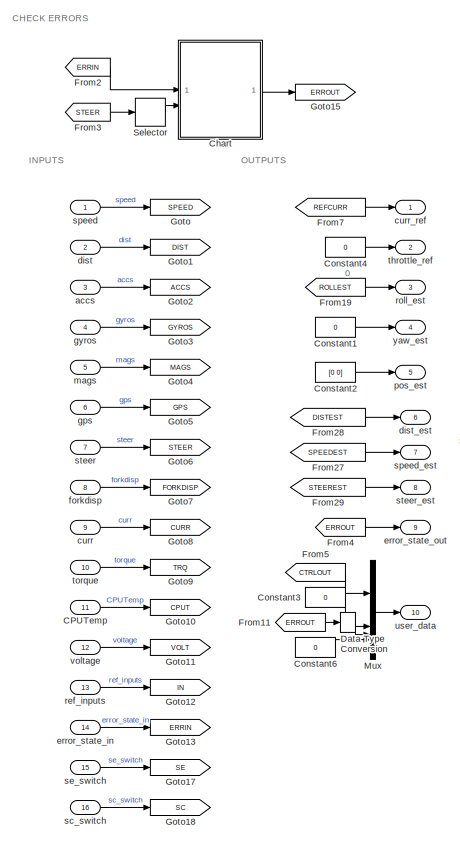
[diagram: root canvas - part 1/2, middle left region]
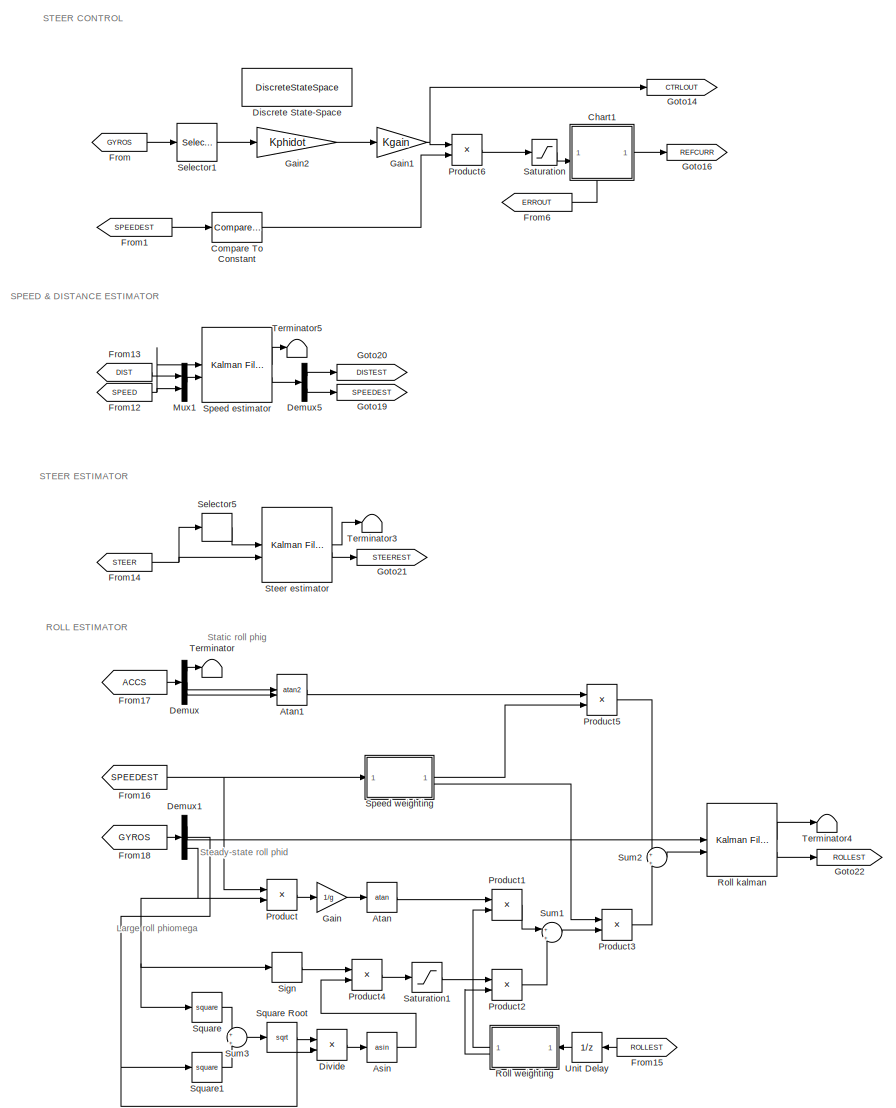
[diagram: root canvas - part 2/2, center side, full height]
MODEL slx_d1ef3c04e36b
KIND model
CONFIG AbsTol = auto
CONFIG EnableMultiTasking = off
CONFIG FixedStep = 1e-3
CONFIG MaxStep = auto
CONFIG MinStep = auto
CONFIG RelTol = 1e-3
CONFIG SampleTimeConstraint = Unconstrained
CONFIG SolverName = FixedStepAuto
CONFIG StartTime = 0.0
CONFIG StopTime = inf
BLOCK [Trigonometry] Asin
  Operator = asin
BLOCK [Trigonometry] Atan
  Operator = atan
BLOCK [Trigonometry] Atan1
  Operator = atan2
BLOCK [Inport] CPUTemp
  OutDataTypeStr = single
  Port = 11
  PortDimensions = [1 1]
  SignalType = real
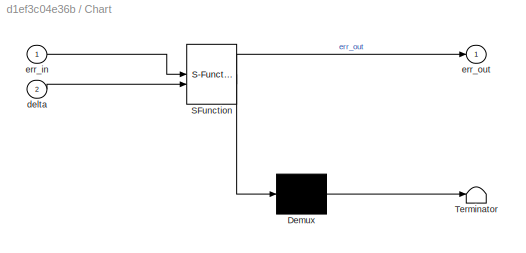
BLOCK [SubSystem] Chart
  ErrorFcn = Stateflow.Translate.translate
  PermitHierarchicalResolution = ExplicitOnly
  SFBlockType = Chart
  TreatAsAtomicUnit = on
BLOCK [Demux] Chart/ Demux 
  Outputs = 1
BLOCK [S-Function] Chart/ SFunction 
  EnableBusSupport = off
  FunctionName = sf_sfun
  Parameters = maxdelta
  PortCounts = [2 2]
  SFcnIsStateOwnerBlock = off
  SFunctionDeploymentMode = off
  Tag = Stateflow S-Function 3
BLOCK [Terminator] Chart/ Terminator 
BLOCK [Inport] Chart/delta
  Port = 2
BLOCK [Inport] Chart/err_in
BLOCK [Outport] Chart/err_out
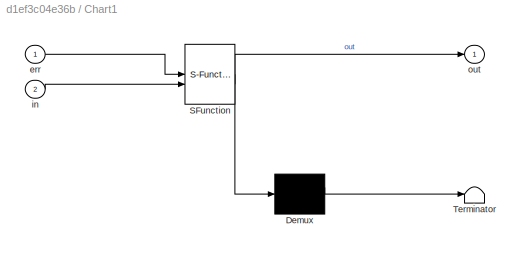
BLOCK [SubSystem] Chart1
  ErrorFcn = Stateflow.Translate.translate
  PermitHierarchicalResolution = ExplicitOnly
  PortSchema = {"entries":[{"content":{"sides":[{"content":{"connectorIds":["In2"]},"type":"ConnectorPlacement.EquallySpacedRectSide","uuid":"a7f247f2-f31a-4b26-82bd-1fe59a6d26c2"},{"content":{"connectorIds":["Out1"],"side":"RIGHT"},"type":"ConnectorPlacement.EquallySpacedRectSide","uuid":"fc5cfdaa-86ff-4983-b913-23b97ab75182"},{"content":{"connectorIds":[],"side":"TOP"},"type":"ConnectorPlacement.EquallySpacedR...<+389ch>
  SFBlockType = Chart
  TreatAsAtomicUnit = on
BLOCK [Demux] Chart1/ Demux 
  Outputs = 1
BLOCK [S-Function] Chart1/ SFunction 
  EnableBusSupport = off
  FunctionName = sf_sfun
  PortCounts = [2 2]
  SFcnIsStateOwnerBlock = off
  SFunctionDeploymentMode = off
  Tag = Stateflow S-Function 1
BLOCK [Terminator] Chart1/ Terminator 
BLOCK [Inport] Chart1/err
BLOCK [Inport] Chart1/in
  Port = 2
BLOCK [Outport] Chart1/out
BLOCK [Reference] Compare To Constant  REF=simulink/Logic and Bit
Operations/Compare
To Constant
  SourceBlock = simulink/Logic and Bit\nOperations/Compare\nTo Constant
  SourceType = Compare To Constant
BLOCK [Constant] Constant1
  OutDataTypeStr = Inherit: Inherit via back propagation
  SampleTime = -1
  Value = 0
BLOCK [Constant] Constant2
  OutDataTypeStr = Inherit: Inherit via back propagation
  SampleTime = -1
  Value = [0 0]
BLOCK [Constant] Constant3
  OutDataTypeStr = Inherit: Inherit via back propagation
  SampleTime = -1
  Value = 0
BLOCK [Constant] Constant4
  OutDataTypeStr = Inherit: Inherit via back propagation
  SampleTime = -1
  Value = 0
BLOCK [Constant] Constant6
  OutDataTypeStr = Inherit: Inherit via back propagation
  SampleTime = -1
  Value = 0
BLOCK [DataTypeConversion] Data Type Conversion
  RndMeth = Floor
  SaturateOnIntegerOverflow = off
BLOCK [Demux] Demux
  Outputs = 3
BLOCK [Demux] Demux1
  Outputs = 3
BLOCK [Demux] Demux5
  Outputs = 2
BLOCK [DiscreteStateSpace] Discrete State-Space
  A = Ksys{kctrl}.A
  B = Ksys{kctrl}.B
  C = Ksys{kctrl}.C
  D = Ksys{kctrl}.D
  SampleTime = -1
BLOCK [Product] Divide
  Inputs = /*
BLOCK [From] From
  GotoTag = GYROS
BLOCK [From] From1
  GotoTag = SPEEDEST
BLOCK [From] From11
  GotoTag = ERROUT
BLOCK [From] From12
  GotoTag = SPEED
BLOCK [From] From13
  GotoTag = DIST
BLOCK [From] From14
  GotoTag = STEER
BLOCK [From] From15
  GotoTag = ROLLEST
  NameLocation = top
BLOCK [From] From16
  GotoTag = SPEEDEST
BLOCK [From] From17
  GotoTag = ACCS
BLOCK [From] From18
  GotoTag = GYROS
BLOCK [From] From19
  GotoTag = ROLLEST
BLOCK [From] From2
  GotoTag = ERRIN
BLOCK [From] From27
  GotoTag = SPEEDEST
BLOCK [From] From28
  GotoTag = DISTEST
BLOCK [From] From29
  GotoTag = STEEREST
BLOCK [From] From3
  GotoTag = STEER
BLOCK [From] From4
  GotoTag = ERROUT
BLOCK [From] From5
  GotoTag = CTRLOUT
BLOCK [From] From6
  GotoTag = ERROUT
BLOCK [From] From7
  GotoTag = REFCURR
BLOCK [Gain] Gain
  Gain = 1/g
BLOCK [Gain] Gain1
  Gain = Kgain
BLOCK [Gain] Gain2
  Gain = Kphidot
BLOCK [Goto] Goto
  GotoTag = SPEED
BLOCK [Goto] Goto1
  GotoTag = DIST
BLOCK [Goto] Goto10
  GotoTag = CPUT
BLOCK [Goto] Goto11
  GotoTag = VOLT
BLOCK [Goto] Goto12
  GotoTag = IN
BLOCK [Goto] Goto13
  GotoTag = ERRIN
BLOCK [Goto] Goto14
  GotoTag = CTRLOUT
BLOCK [Goto] Goto15
  GotoTag = ERROUT
BLOCK [Goto] Goto16
  GotoTag = REFCURR
BLOCK [Goto] Goto17
  GotoTag = SE
BLOCK [Goto] Goto18
  GotoTag = SC
BLOCK [Goto] Goto19
  GotoTag = SPEEDEST
BLOCK [Goto] Goto2
  GotoTag = ACCS
BLOCK [Goto] Goto20
  GotoTag = DISTEST
BLOCK [Goto] Goto21
  GotoTag = STEEREST
BLOCK [Goto] Goto22
  GotoTag = ROLLEST
BLOCK [Goto] Goto3
  GotoTag = GYROS
BLOCK [Goto] Goto4
  GotoTag = MAGS
BLOCK [Goto] Goto5
  GotoTag = GPS
BLOCK [Goto] Goto6
  GotoTag = STEER
BLOCK [Goto] Goto7
  GotoTag = FORKDISP
BLOCK [Goto] Goto8
  GotoTag = CURR
BLOCK [Goto] Goto9
  GotoTag = TRQ
BLOCK [Mux] Mux
  DisplayOption = bar
BLOCK [Mux] Mux1
  DisplayOption = bar
  Inputs = 2
BLOCK [Product] Product
BLOCK [Product] Product1
BLOCK [Product] Product2
BLOCK [Product] Product3
BLOCK [Product] Product4
BLOCK [Product] Product5
BLOCK [Product] Product6
BLOCK [Reference] Roll kalman  REF=ctrlSharedLib/Kalman Filter
  LibrarySourceBlock = cstblocks/State Estimation/Kalman Filter
  SourceBlock = ctrlSharedLib/Kalman Filter
  SourceType = ctrlKalmanFilter
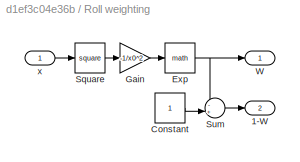
BLOCK [SubSystem] Roll weighting
  NameLocation = top
BLOCK [Outport] Roll weighting/1-W
  Port = 2
BLOCK [Constant] Roll weighting/Constant
  OutDataTypeStr = Inherit: Inherit via back propagation
BLOCK [Math] Roll weighting/Exp
BLOCK [Gain] Roll weighting/Gain
  Gain = -1/x0^2
BLOCK [Math] Roll weighting/Square
  Operator = square
BLOCK [Sum] Roll weighting/Sum
  Inputs = -+|
BLOCK [Outport] Roll weighting/W
BLOCK [Inport] Roll weighting/x
BLOCK [Saturate] Saturation
  LowerLimit = -iamax
  UpperLimit = iamax
BLOCK [Saturate] Saturation1
  LowerLimit = -phisat
  UpperLimit = phisat
BLOCK [Selector] Selector
  IndexMode = Zero-based
  IndexOptions = Index vector (dialog)
  Indices = 0
  InputPortWidth = 2
  OutputSizes = 1
BLOCK [Selector] Selector1
  IndexOptions = Index vector (dialog)
  Indices = 1
  InputPortWidth = 3
  OutputSizes = 1
BLOCK [Selector] Selector5
  IndexMode = Zero-based
  IndexOptions = Index vector (dialog)
  Indices = 1
  InputPortWidth = 2
  OutputSizes = 1
BLOCK [Signum] Sign
BLOCK [Reference] Speed estimator  REF=ctrlSharedLib/Kalman Filter
  LibrarySourceBlock = cstblocks/State Estimation/Kalman Filter
  SourceBlock = ctrlSharedLib/Kalman Filter
  SourceType = ctrlKalmanFilter
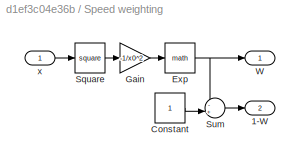
BLOCK [SubSystem] Speed weighting
BLOCK [Outport] Speed weighting/1-W
  Port = 2
BLOCK [Constant] Speed weighting/Constant
  OutDataTypeStr = Inherit: Inherit via back propagation
BLOCK [Math] Speed weighting/Exp
BLOCK [Gain] Speed weighting/Gain
  Gain = -1/x0^2
BLOCK [Math] Speed weighting/Square
  Operator = square
BLOCK [Sum] Speed weighting/Sum
  Inputs = -+|
BLOCK [Outport] Speed weighting/W
BLOCK [Inport] Speed weighting/x
BLOCK [Math] Square
  Operator = square
BLOCK [Sqrt] Square Root
BLOCK [Math] Square1
  Operator = square
BLOCK [Reference] Steer estimator  REF=ctrlSharedLib/Kalman Filter
  LibrarySourceBlock = cstblocks/State Estimation/Kalman Filter
  SourceBlock = ctrlSharedLib/Kalman Filter
  SourceType = ctrlKalmanFilter
BLOCK [Sum] Sum1
  Inputs = +|+
BLOCK [Sum] Sum2
  Inputs = +|+
BLOCK [Sum] Sum3
  Inputs = +|+
BLOCK [Terminator] Terminator
BLOCK [Terminator] Terminator3
BLOCK [Terminator] Terminator4
BLOCK [Terminator] Terminator5
BLOCK [UnitDelay] Unit Delay
  HasFrameUpgradeWarning = on
  NameLocation = top
  SampleTime = -1
BLOCK [Inport] accs
  OutDataTypeStr = single
  Port = 3
  PortDimensions = [3 1]
  SignalType = real
BLOCK [Inport] curr
  OutDataTypeStr = single
  Port = 9
  PortDimensions = [1 1]
  SignalType = real
BLOCK [Outport] curr_ref
  OutDataTypeStr = single
  PortDimensions = [1 1]
  SignalName = curr_ref
  SignalType = real
BLOCK [Inport] dist
  OutDataTypeStr = single
  Port = 2
  PortDimensions = [1 1]
  SignalType = real
BLOCK [Outport] dist_est
  OutDataTypeStr = single
  Port = 6
  PortDimensions = [1 1]
  SignalName = dist_est
  SignalType = real
BLOCK [Inport] error_state_in
  OutDataTypeStr = uint8
  Port = 14
  PortDimensions = [1 1]
  SignalType = real
BLOCK [Outport] error_state_out
  OutDataTypeStr = uint8
  Port = 9
  PortDimensions = [1 1]
  SignalName = error_state_out
  SignalType = real
BLOCK [Inport] forkdisp
  OutDataTypeStr = single
  Port = 8
  PortDimensions = [1 1]
  SignalType = real
BLOCK [Inport] gps
  OutDataTypeStr = single
  Port = 6
  PortDimensions = [3 1]
  SignalType = real
BLOCK [Inport] gyros
  OutDataTypeStr = single
  Port = 4
  PortDimensions = [3 1]
  SignalType = real
BLOCK [Inport] mags
  OutDataTypeStr = single
  Port = 5
  PortDimensions = [3 1]
  SignalType = real
BLOCK [Outport] pos_est
  OutDataTypeStr = single
  Port = 5
  PortDimensions = [2 1]
  SignalName = pos_est
  SignalType = real
BLOCK [Inport] ref_inputs
  OutDataTypeStr = single
  Port = 13
  PortDimensions = [2 1]
  SignalType = real
BLOCK [Outport] roll_est
  OutDataTypeStr = single
  Port = 3
  PortDimensions = [1 1]
  SignalName = roll_est
  SignalType = real
BLOCK [Inport] sc_switch
  OutDataTypeStr = single
  Port = 16
  PortDimensions = [1 1]
  SignalType = real
BLOCK [Inport] se_switch
  OutDataTypeStr = single
  Port = 15
  PortDimensions = [1 1]
  SignalType = real
BLOCK [Inport] speed
  OutDataTypeStr = single
  PortDimensions = [1 1]
  SignalType = real
BLOCK [Outport] speed_est
  OutDataTypeStr = single
  Port = 7
  PortDimensions = [1 1]
  SignalName = speed_est
  SignalType = real
BLOCK [Inport] steer
  OutDataTypeStr = single
  Port = 7
  PortDimensions = [2 1]
  SignalType = real
BLOCK [Outport] steer_est
  OutDataTypeStr = single
  Port = 8
  PortDimensions = [2 1]
  SignalName = steer_est
  SignalType = real
BLOCK [Outport] throttle_ref
  OutDataTypeStr = single
  Port = 2
  PortDimensions = [1 1]
  SignalName = throttle_ref
  SignalType = real
BLOCK [Inport] torque
  OutDataTypeStr = single
  Port = 10
  PortDimensions = [1 1]
  SignalType = real
BLOCK [Outport] user_data
  OutDataTypeStr = single
  Port = 10
  PortDimensions = [4 1]
  SignalName = user_data
  SignalType = real
BLOCK [Inport] voltage
  OutDataTypeStr = single
  Port = 12
  PortDimensions = [1 1]
  SignalType = real
BLOCK [Outport] yaw_est
  OutDataTypeStr = single
  Port = 4
  PortDimensions = [1 1]
  SignalName = yaw_est
  SignalType = real
ANNOTATION (root): 0
ANNOTATION (root): CHECK ERRORS
ANNOTATION (root): INPUTS
ANNOTATION (root): Large roll phiomega
ANNOTATION (root): OUTPUTS
ANNOTATION (root): ROLL ESTIMATOR
ANNOTATION (root): SPEED & DISTANCE ESTIMATOR
ANNOTATION (root): STEER CONTROL
ANNOTATION (root): STEER ESTIMATOR
ANNOTATION (root): Static roll phig
ANNOTATION (root): Steady-state roll phid
LINE Asin:1 -> Product4:2
LINE Atan1:1 -> Product5:1
LINE Atan:1 -> Product1:1
LINE CPUTemp:1 -> Goto10:1
LINE Chart1:1 -> Goto16:1
LINE Chart:1 -> Goto15:1
LINE Compare To Constant:1 -> Product6:2
LINE Constant1:1 -> yaw_est:1
LINE Constant2:1 -> pos_est:1
LINE Constant3:1 -> Mux:2
LINE Constant4:1 -> throttle_ref:1
LINE Constant6:1 -> Mux:4
LINE Data Type Conversion:1 -> Mux:3
LINE Demux1:1 -> Roll kalman:1
NET Demux1:2 -> Divide:2, Square1:1
NET Demux1:3 -> Product:2, Sign:1, Square:1
LINE Demux5:1 -> Goto20:1
LINE Demux5:2 -> Goto19:1
LINE Demux:1 -> Terminator:1
LINE Demux:2 -> Atan1:1
LINE Demux:3 -> Atan1:2
LINE Divide:1 -> Asin:1
LINE From11:1 -> Data Type Conversion:1
NET From12:1 -> Mux1:2, Speed estimator:1
LINE From13:1 -> Mux1:1
NET From14:1 -> Selector5:1, Steer estimator:2
LINE From15:1 -> Unit Delay:1
NET From16:1 -> Product:1, Speed weighting:1
LINE From17:1 -> Demux:1
LINE From18:1 -> Demux1:1
LINE From19:1 -> roll_est:1
LINE From1:1 -> Compare To Constant:1
LINE From27:1 -> speed_est:1
LINE From28:1 -> dist_est:1
LINE From29:1 -> steer_est:1
LINE From2:1 -> Chart:1
LINE From3:1 -> Selector:1
LINE From4:1 -> error_state_out:1
LINE From5:1 -> Mux:1
LINE From6:1 -> Chart1:1
LINE From7:1 -> curr_ref:1
LINE From:1 -> Selector1:1
NET Gain1:1 -> Goto14:1, Product6:1
LINE Gain2:1 -> Gain1:1
LINE Gain:1 -> Atan:1
LINE Mux1:1 -> Speed estimator:2
LINE Mux:1 -> user_data:1
LINE Product1:1 -> Sum1:1
LINE Product2:1 -> Sum1:2
LINE Product3:1 -> Sum2:2
LINE Product4:1 -> Saturation1:1
LINE Product5:1 -> Sum2:1
LINE Product6:1 -> Saturation:1
LINE Product:1 -> Gain:1
LINE Roll kalman:1 -> Terminator4:1
LINE Roll kalman:2 -> Goto22:1
LINE Roll weighting/Constant:1 -> Roll weighting/Sum:2
NET Roll weighting/Exp:1 -> Roll weighting/Sum:1, Roll weighting/W:1
LINE Roll weighting/Gain:1 -> Roll weighting/Exp:1
LINE Roll weighting/Square:1 -> Roll weighting/Gain:1
LINE Roll weighting/Sum:1 -> Roll weighting/1-W:1
LINE Roll weighting/x:1 -> Roll weighting/Square:1
LINE Roll weighting:1 -> Product1:2
LINE Roll weighting:2 -> Product2:2
LINE Saturation1:1 -> Product2:1
LINE Saturation:1 -> Chart1:2
LINE Selector1:1 -> Gain2:1
LINE Selector5:1 -> Steer estimator:1
LINE Selector:1 -> Chart:2
LINE Sign:1 -> Product4:1
LINE Speed estimator:1 -> Terminator5:1
LINE Speed estimator:2 -> Demux5:1
LINE Speed weighting/Constant:1 -> Speed weighting/Sum:2
NET Speed weighting/Exp:1 -> Speed weighting/Sum:1, Speed weighting/W:1
LINE Speed weighting/Gain:1 -> Speed weighting/Exp:1
LINE Speed weighting/Square:1 -> Speed weighting/Gain:1
LINE Speed weighting/Sum:1 -> Speed weighting/1-W:1
LINE Speed weighting/x:1 -> Speed weighting/Square:1
LINE Speed weighting:1 -> Product5:2
LINE Speed weighting:2 -> Product3:1
LINE Square Root:1 -> Divide:1
LINE Square1:1 -> Sum3:2
LINE Square:1 -> Sum3:1
LINE Steer estimator:1 -> Terminator3:1
LINE Steer estimator:2 -> Goto21:1
LINE Sum1:1 -> Product3:2
LINE Sum2:1 -> Roll kalman:2
LINE Sum3:1 -> Square Root:1
LINE Unit Delay:1 -> Roll weighting:1
LINE accs:1 -> Goto2:1
LINE curr:1 -> Goto8:1
LINE dist:1 -> Goto1:1
LINE error_state_in:1 -> Goto13:1
LINE forkdisp:1 -> Goto7:1
LINE gps:1 -> Goto5:1
LINE gyros:1 -> Goto3:1
LINE mags:1 -> Goto4:1
LINE ref_inputs:1 -> Goto12:1
LINE sc_switch:1 -> Goto18:1
LINE se_switch:1 -> Goto17:1
LINE speed:1 -> Goto:1
LINE steer:1 -> Goto6:1
LINE torque:1 -> Goto9:1
LINE voltage:1 -> Goto11:1
note: NET lines group one-source signal fan-out (src -> all destinations, sorted); 1:1 wires keep LINE
CHART Chart1 states=2 transitions=4
  STATE_LABEL 'SETCURR\nout=in;'
  STATE_LABEL 'IDLE\nout=0;'
CHART Chart states=2 transitions=5
  STATE_LABEL 'UPDATEERR\nerr_out=err_in;'
  STATE_LABEL 'CHECKSTEER\nerr_out=1;'
CHART  states=0 transitions=0
CHART  states=0 transitions=0
